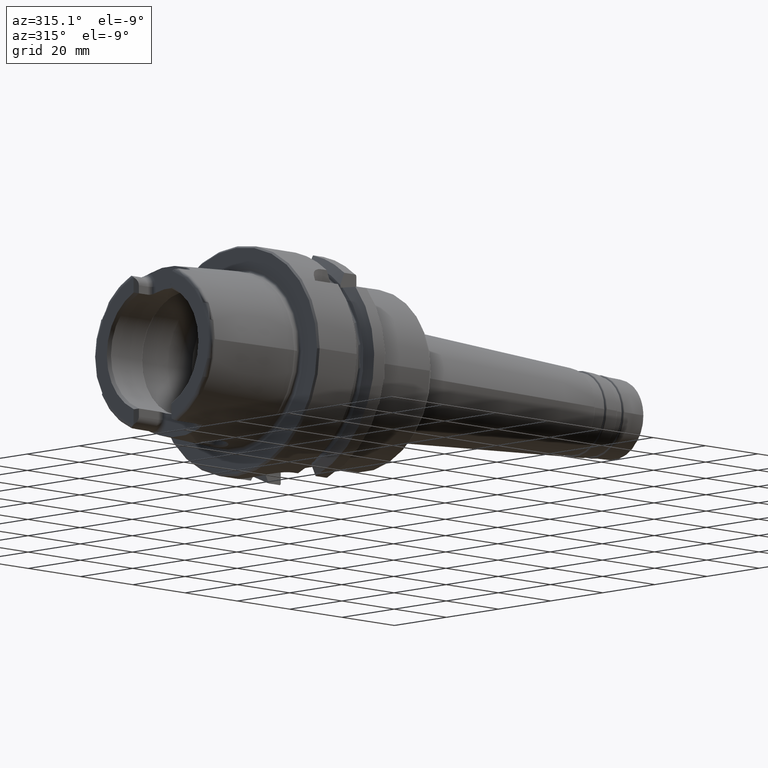
[diagram: clean part render]
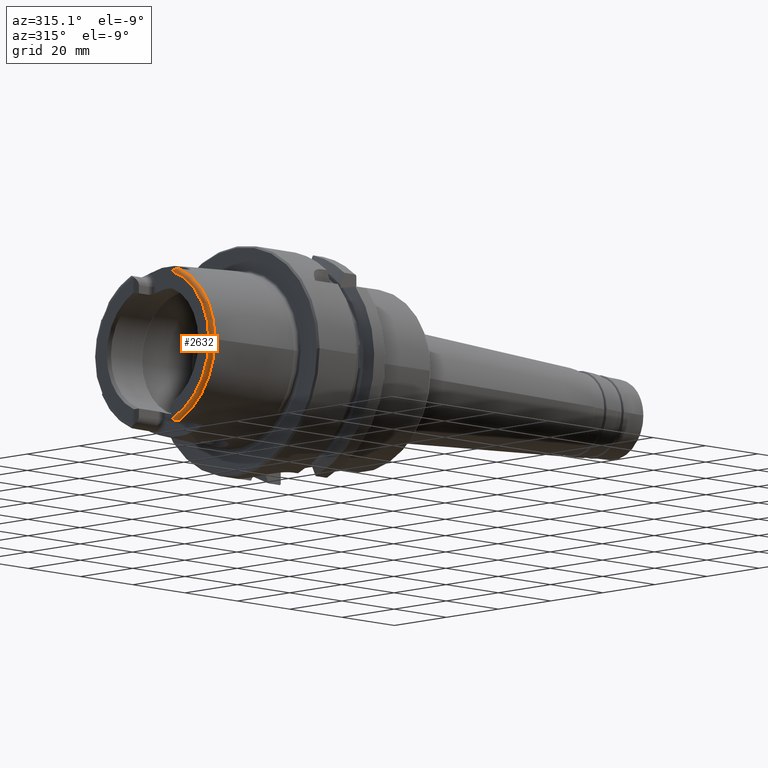
[diagram: same view with one face highlighted and labeled with its STEP entity id]
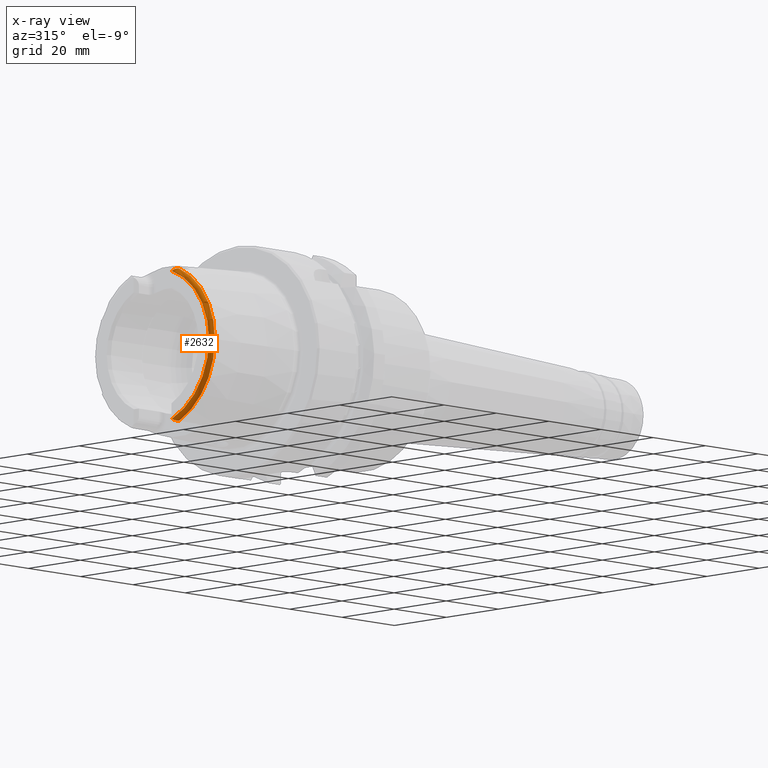
[diagram: x-ray of the same camera — body ghosted, the highlighted face saturated]
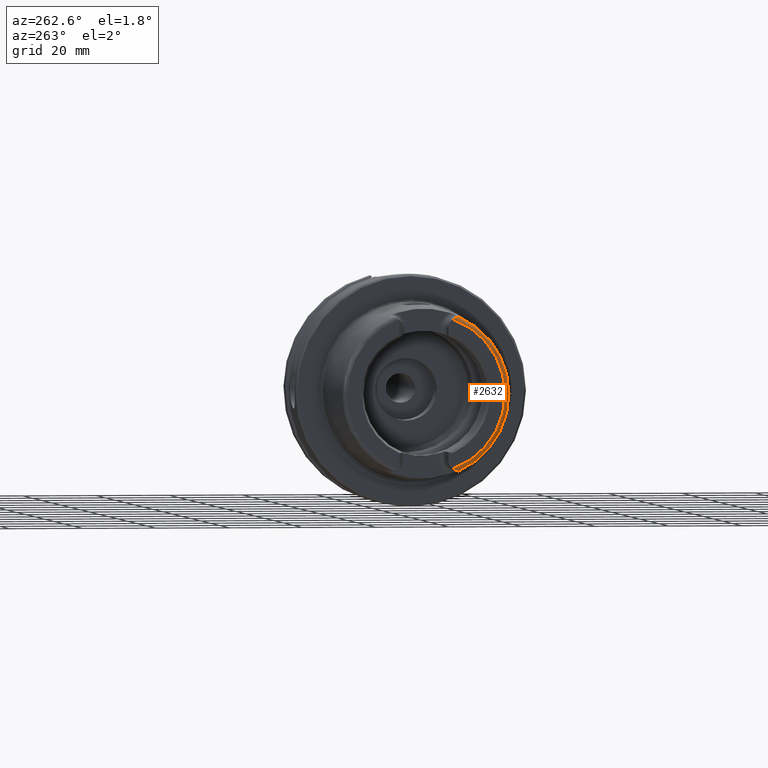
[diagram: same view with one face highlighted and labeled with its STEP entity id]
A machine part, auxiliary view. The second image highlights one B-rep face of the part: STEP entity #2632.
The next image is the same camera in x-ray: the body ghosted, the highlighted face saturated — about 0% of this face is hidden behind the body in this view.
A second angle (auxiliary view) of the same face is appended — the face is thin or edge-on in the first view.
In plain terms, the highlighted toroidal blend (fillet) surface has major radius 21.576 mm and minor (blend) radius 1.2 mm.
Its self-contained STEP definition (entity closure, byte-faithful):
#33=B_SPLINE_CURVE_WITH_KNOTS('',3,(#4234,#4235,#4236,#4237,#4238,#4239,
#4240,#4241,#4242,#4243,#4244,#4245),.UNSPECIFIED.,.F.,.F.,(4,2,2,2,2,4),
(-0.440016298339346,-0.413819168091726,-0.38684223146412,-0.314176502280688,
-0.242048966230796,-0.191409762337977),.UNSPECIFIED.);
#88=B_SPLINE_CURVE_WITH_KNOTS('',3,(#5427,#5428,#5429,#5430,#5431,#5432,
#5433,#5434,#5435,#5436,#5437,#5438),.UNSPECIFIED.,.F.,.F.,(4,2,2,2,2,4),
(-0.196612183526961,-0.162100751777108,-0.0988537843219417,-0.0492481970353068,
-0.0201985054494333,0.),.UNSPECIFIED.);
#175=TOROIDAL_SURFACE('',#2970,21.5760400159857,1.2);
#313=FACE_OUTER_BOUND('',#455,.T.);
#455=EDGE_LOOP('',(#2320,#2321,#2322,#2323,#2324));
#826=CIRCLE('',#2823,21.5760400159857);
#836=CIRCLE('',#2848,22.7745368271334);
#840=CIRCLE('',#2852,22.7745368271334);
#1047=VERTEX_POINT('',#4160);
#1048=VERTEX_POINT('',#4162);
#1064=VERTEX_POINT('',#4233);
#1080=VERTEX_POINT('',#4436);
#1081=VERTEX_POINT('',#4438);
#1368=EDGE_CURVE('',#1048,#1047,#826,.T.);
#1389=EDGE_CURVE('',#1064,#1048,#33,.T.);
#1410=EDGE_CURVE('',#1080,#1081,#836,.T.);
#1423=EDGE_CURVE('',#1064,#1080,#840,.T.);
#1598=EDGE_CURVE('',#1047,#1081,#88,.T.);
#2320=ORIENTED_EDGE('',*,*,#1389,.T.);
#2321=ORIENTED_EDGE('',*,*,#1368,.T.);
#2322=ORIENTED_EDGE('',*,*,#1598,.T.);
#2323=ORIENTED_EDGE('',*,*,#1410,.F.);
#2324=ORIENTED_EDGE('',*,*,#1423,.F.);
#2632=ADVANCED_FACE('',(#313),#175,.T.);
#2823=AXIS2_PLACEMENT_3D('',#4163,#3356,#3357);
#2848=AXIS2_PLACEMENT_3D('',#4439,#3424,#3425);
#2852=AXIS2_PLACEMENT_3D('',#4562,#3432,#3433);
#2970=AXIS2_PLACEMENT_3D('',#5426,#3731,#3732);
#3356=DIRECTION('center_axis',(1.,0.,0.));
#3357=DIRECTION('ref_axis',(0.,0.,-1.));
#3424=DIRECTION('center_axis',(1.,0.,0.));
#3425=DIRECTION('ref_axis',(0.,0.,-1.));
#3432=DIRECTION('center_axis',(1.,0.,0.));
#3433=DIRECTION('ref_axis',(0.,0.,-1.));
#3731=DIRECTION('center_axis',(1.,0.,0.));
#3732=DIRECTION('ref_axis',(0.,0.,-1.));
#4160=CARTESIAN_POINT('',(-32.,-7.39118810947246,-20.2705658801576));
#4162=CARTESIAN_POINT('',(-32.,-7.39118810947246,20.2705658801576));
#4163=CARTESIAN_POINT('Origin',(-32.,0.,0.));
#4233=CARTESIAN_POINT('',(-30.8600449304182,-9.1175788960984,20.8698175067219));
#4234=CARTESIAN_POINT('Ctrl Pts',(-30.8600449304182,-9.11757889609839,20.8698175067219));
#4235=CARTESIAN_POINT('Ctrl Pts',(-30.9283853966267,-9.1092413596916,20.8697236423942));
#4236=CARTESIAN_POINT('Ctrl Pts',(-30.9933437959442,-9.08709005778456,20.8694809526083));
#4237=CARTESIAN_POINT('Ctrl Pts',(-31.1177754091763,-9.02396510410894,20.8674193162914));
#4238=CARTESIAN_POINT('Ctrl Pts',(-31.1770034834694,-8.98246838908717,20.8654817144325));
#4239=CARTESIAN_POINT('Ctrl Pts',(-31.3775872414353,-8.81520504288704,20.8530880014962));
#4240=CARTESIAN_POINT('Ctrl Pts',(-31.521057678942,-8.63827412284131,20.8318261586711));
#4241=CARTESIAN_POINT('Ctrl Pts',(-31.7694065050575,-8.23592790359805,20.7289177452773));
#4242=CARTESIAN_POINT('Ctrl Pts',(-31.8689043999789,-8.02084936775806,20.6497346714256));
#4243=CARTESIAN_POINT('Ctrl Pts',(-31.9746332690681,-7.66799906728034,20.4648878758955));
#4244=CARTESIAN_POINT('Ctrl Pts',(-32.,-7.52524774054413,20.3739549886328));
#4245=CARTESIAN_POINT('Ctrl Pts',(-32.,-7.39118810947247,20.2705658801576));
#4436=CARTESIAN_POINT('',(-30.8600449304182,-22.7745368271334,-2.78907636274124E-15));
#4438=CARTESIAN_POINT('',(-30.8600449304182,-9.1175788960984,-20.8698175067219));
#4439=CARTESIAN_POINT('Origin',(-30.8600449304182,0.,0.));
#4562=CARTESIAN_POINT('Origin',(-30.8600449304182,0.,0.));
#5426=CARTESIAN_POINT('Origin',(-30.8,0.,0.));
#5427=CARTESIAN_POINT('Ctrl Pts',(-32.,-7.39118810947247,-20.2705658801576));
#5428=CARTESIAN_POINT('Ctrl Pts',(-32.,-7.51057646079925,-20.3626402436877));
#5429=CARTESIAN_POINT('Ctrl Pts',(-31.9798323447024,-7.63713759811651,-20.4450895592776));
#5430=CARTESIAN_POINT('Ctrl Pts',(-31.8795915966629,-8.00411514663101,-20.6460540241957));
#5431=CARTESIAN_POINT('Ctrl Pts',(-31.7662291944519,-8.24534617868917,-20.7330636375648));
#5432=CARTESIAN_POINT('Ctrl Pts',(-31.5260503396065,-8.62641311167603,-20.8272571305318));
#5433=CARTESIAN_POINT('Ctrl Pts',(-31.4080214744472,-8.77500391332017,-20.8477181028241));
#5434=CARTESIAN_POINT('Ctrl Pts',(-31.2168511506693,-8.95347341138424,-20.8640491182849));
#5435=CARTESIAN_POINT('Ctrl Pts',(-31.1371144343332,-9.01480627610083,-20.8671499279665));
#5436=CARTESIAN_POINT('Ctrl Pts',(-30.9904836833853,-9.08806135889972,-20.8694907892639));
#5437=CARTESIAN_POINT('Ctrl Pts',(-30.9268776870879,-9.10942530024495,-20.8697257132045));
#5438=CARTESIAN_POINT('Ctrl Pts',(-30.8600449304182,-9.11757889609838,-20.8698175067219));